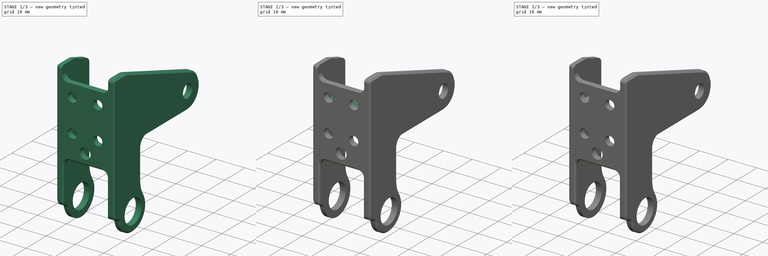
[diagram: build sequence overview — one tinted view per stage of 3, left to right]
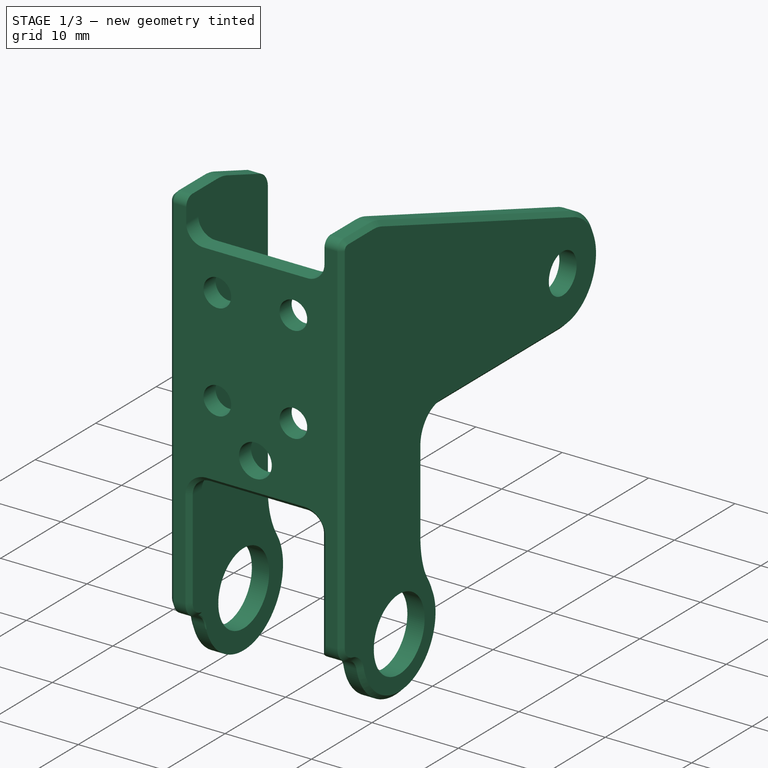
[diagram: stage 1 of 3 — iso view after this stage's code; geometry added in this stage tinted green]
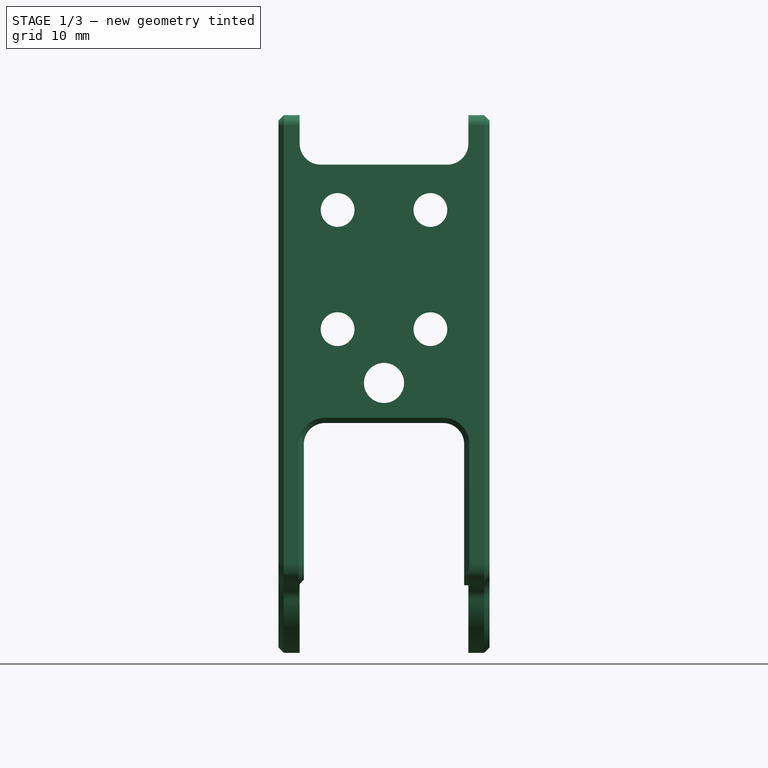
[diagram: stage 1 of 3 — front view after this stage's code; geometry added in this stage tinted green]
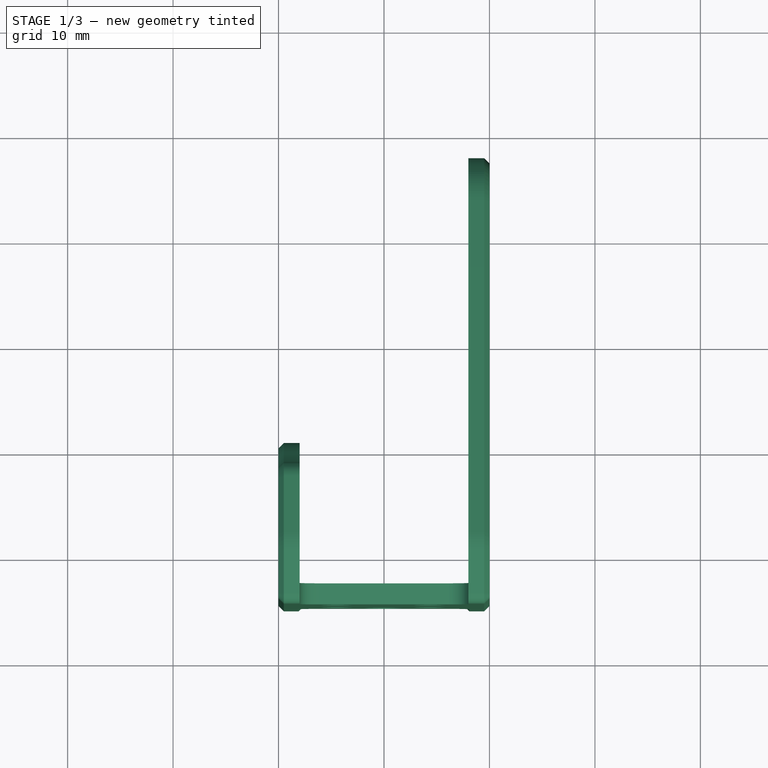
[diagram: stage 1 of 3 — top view after this stage's code; geometry added in this stage tinted green]
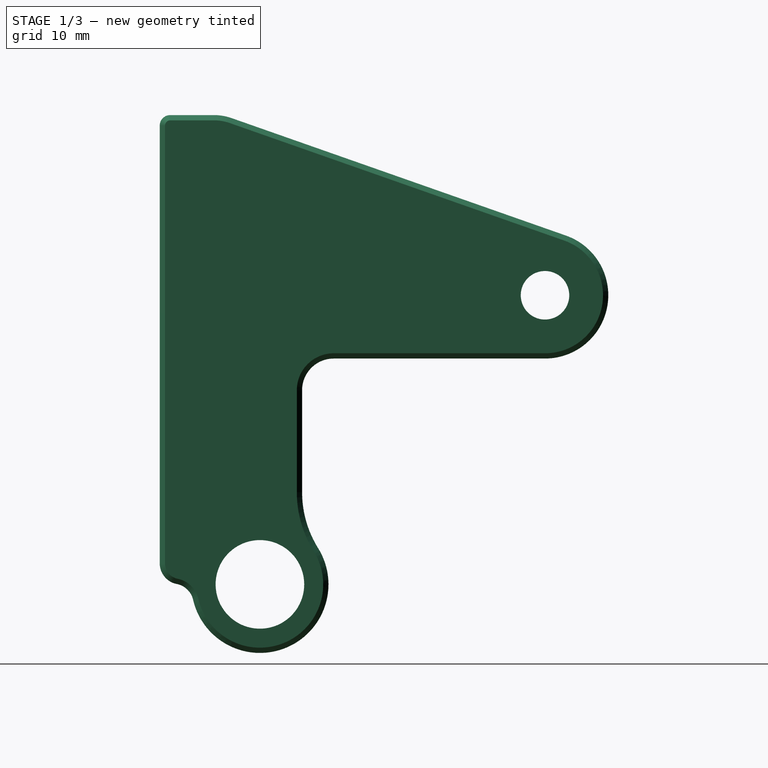
[diagram: stage 1 of 3 — right view after this stage's code; geometry added in this stage tinted green]
FCSTD DOCUMENT  (FreeCAD 0.18R16146 (Git))
Label: ResizedEndEffectorHold
License: All rights reserved
LicenseURL: http://en.wikipedia.org/wiki/All_rights_reserved
objects: Sketcher::SketchObject×4, PartDesign::Pocket×2, PartDesign::Pad×2, Part::Feature×1, PartDesign::FeatureBase×1, PartDesign::Body×1
note: 15 computed .brp shape members not serialized (recipe doc carries the construction recipe); baked Part::Feature solids carry a one-line shape summary decoded from their .brp

FEATURE [Part::Feature] Part__Feature086  label="EndEffectorHold"
  Placement = pos=(-58.6299,231.648,-119.954) rot=(-0.000298,-1,-0.000298;1.5708rad)
  shape: bbox 51.01 x 42.55 x 20 mm, 84 faces (baked)
FEATURE [PartDesign::FeatureBase] BaseFeature
  BaseFeature = -> Part__Feature086
FEATURE [Sketcher::SketchObject] Sketch
  ExternalGeometry = -> [BaseFeature]
  MapMode = 5
  Placement = pos=(10,0,0) rot=(0.57735,0.57735,0.57735;2.0944rad)
  Support = -> [BaseFeature]
  sketch-geometry (2):
    g0: Circle CenterX=-15.5 CenterY=-22 CenterZ=0 NormalX=0 NormalY=0 NormalZ=1 AngleXU=0 Radius=4.2
    g1: Circle CenterX=11.5329 CenterY=5.413 CenterZ=0 NormalX=0 NormalY=0 NormalZ=1 AngleXU=0 Radius=2.3
  constraints (4):
    c: Coincident(g0,g-4)
    c: Radius(g0) = 4.2
    c: Coincident(g1,g-6)
    c: Radius(g1) = 2.3
FEATURE [PartDesign::Pocket] Pocket
  BaseFeature = -> BaseFeature
  Length = 5
  Length2 = 100
  Profile = -> Sketch
  Type = 1
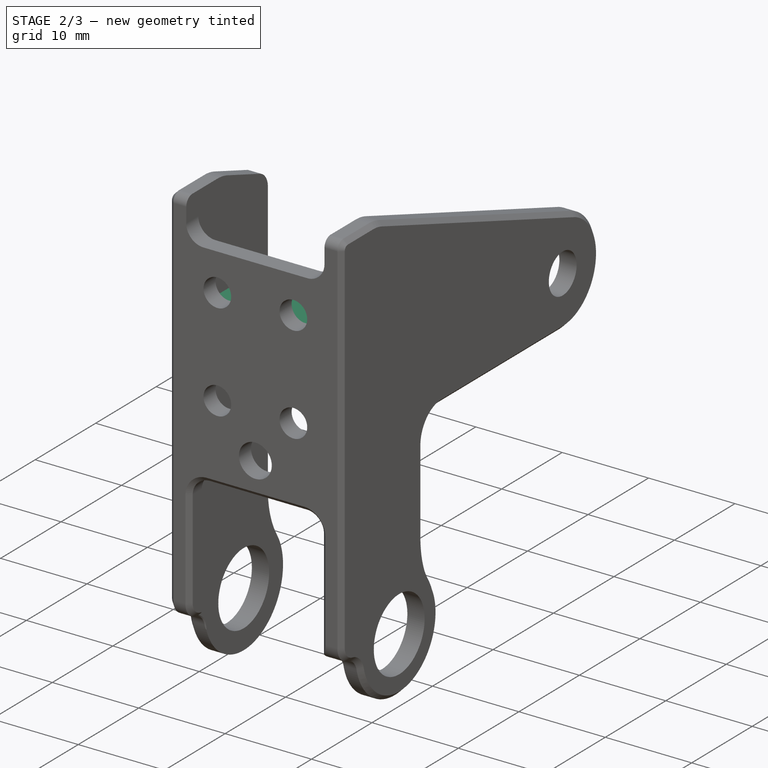
[diagram: stage 2 of 3 — iso view after this stage's code; geometry added in this stage tinted green]
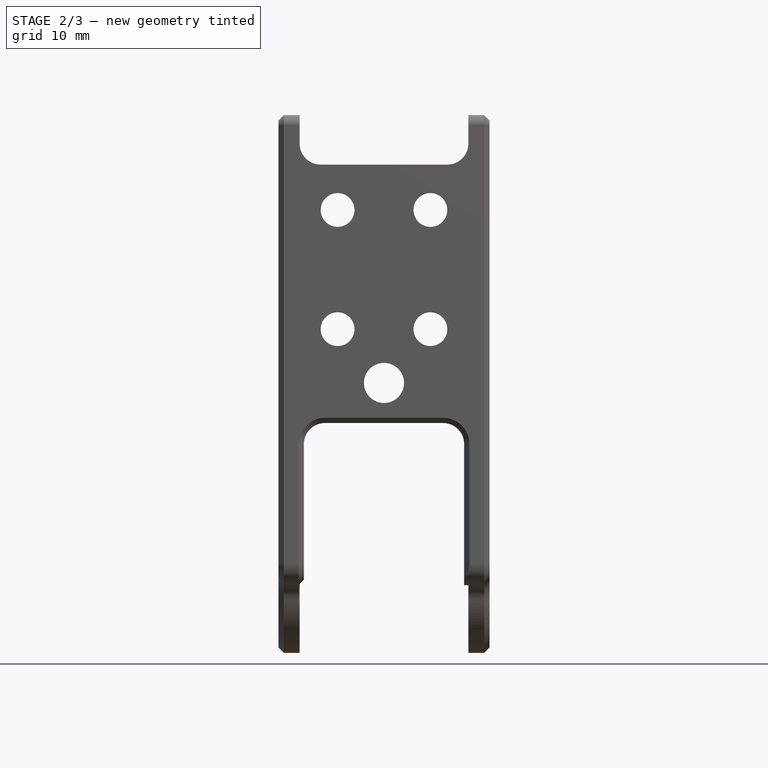
[diagram: stage 2 of 3 — front view after this stage's code; geometry added in this stage tinted green]
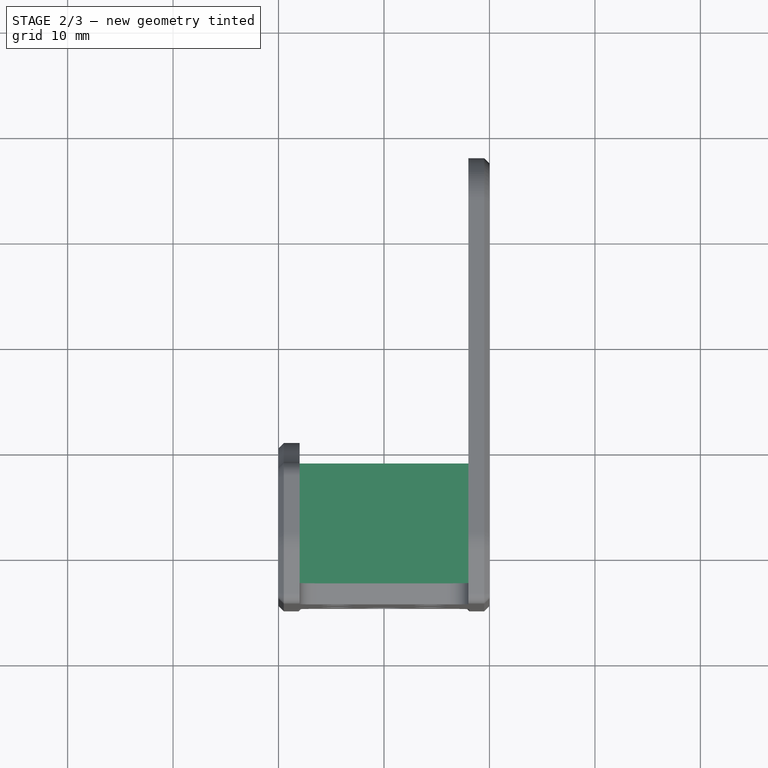
[diagram: stage 2 of 3 — top view after this stage's code; geometry added in this stage tinted green]
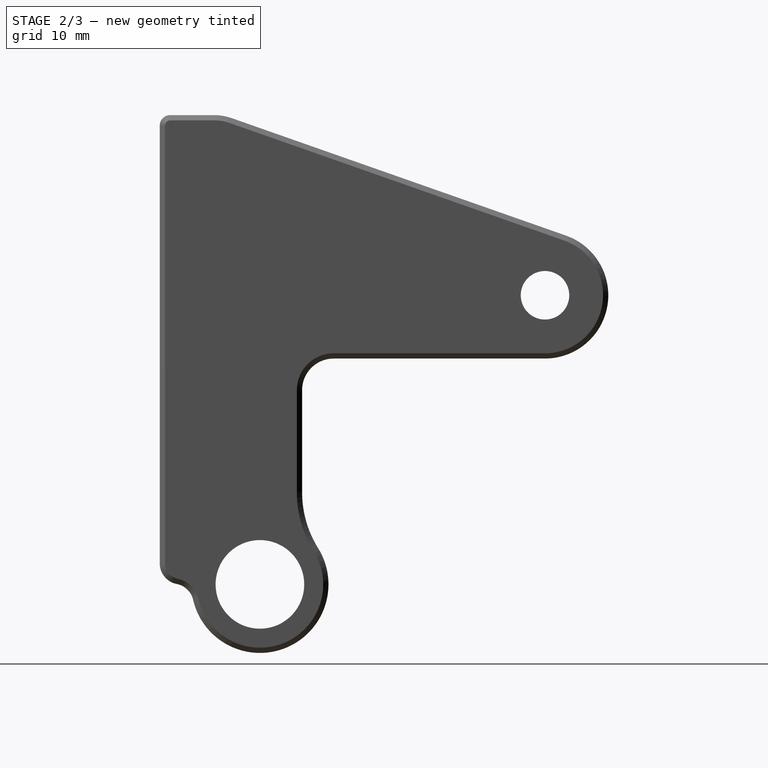
[diagram: stage 2 of 3 — right view after this stage's code; geometry added in this stage tinted green]
FEATURE [Sketcher::SketchObject] Sketch001
  ExternalGeometry = -> [Pocket]
  MapMode = 5
  Placement = pos=(0,-23,0) rot=(0,0.707107,0.707107;3.14159rad)
  Support = -> [Pocket]
  sketch-geometry (4):
    g0: LineSegment StartX=-8 StartY=10.35 StartZ=0 EndX=8 EndY=10.35 EndZ=0
    g1: LineSegment StartX=8 StartY=10.35 StartZ=0 EndX=8 EndY=5.35 EndZ=0
    g2: LineSegment StartX=8 StartY=5.35 StartZ=0 EndX=-8 EndY=5.35 EndZ=0
    g3: LineSegment StartX=-8 StartY=5.35 StartZ=0 EndX=-8 EndY=10.35 EndZ=0
  constraints (13):
    c: Coincident(g0,g1)
    c: Coincident(g1,g2)
    c: Coincident(g2,g3)
    c: Coincident(g3,g0)
    c: Horizontal(g0)
    c: Horizontal(g2)
    c: Vertical(g1)
    c: Vertical(g3)
    c: PointOnObject(g0,g-3)
    c: PointOnObject(g1,g-4)
    c: Distance(g0,g2) = 5
    c: Distance(g-6,g0) = 3.15
    c: Distance(g-7,g2) = 3.15
FEATURE [PartDesign::Pad] Pad
  BaseFeature = -> Pocket
  Length = 10
  Length2 = 100
  Profile = -> Sketch001
  Type = 3
  UpToFace = -> Pocket [Face20]
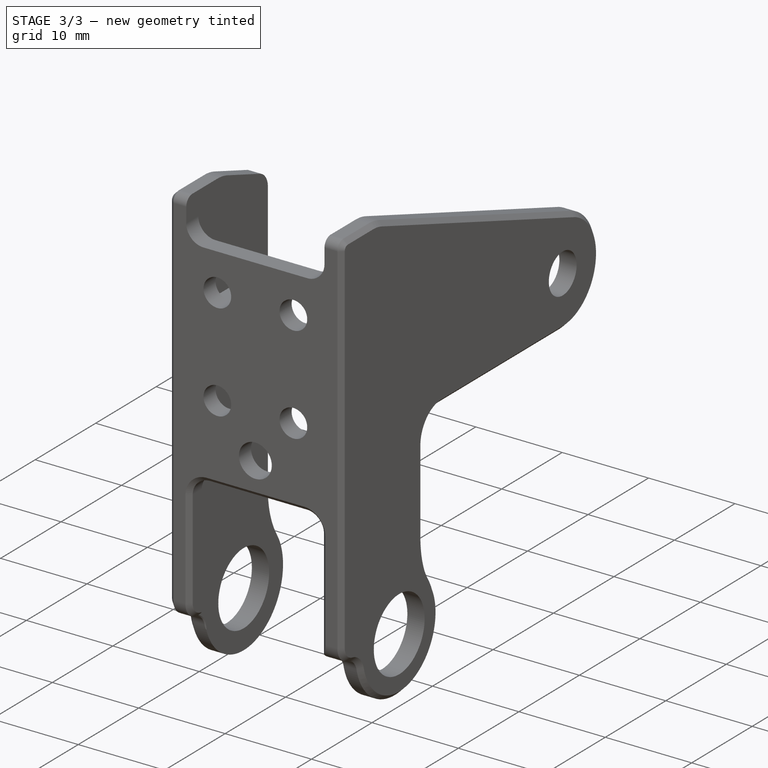
[diagram: stage 3 of 3 — iso view after this stage's code; geometry added in this stage tinted green]
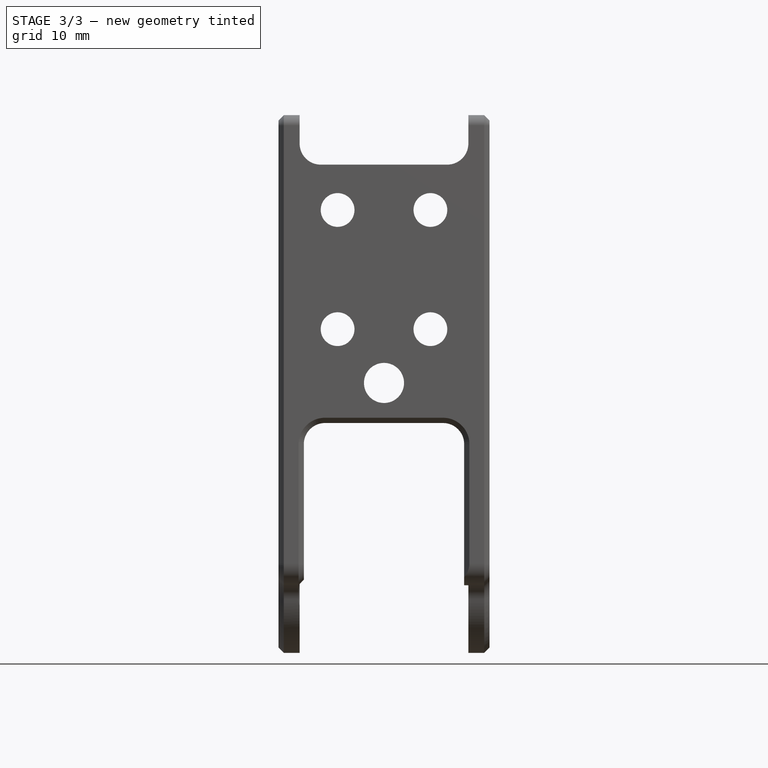
[diagram: stage 3 of 3 — front view after this stage's code; geometry added in this stage tinted green]
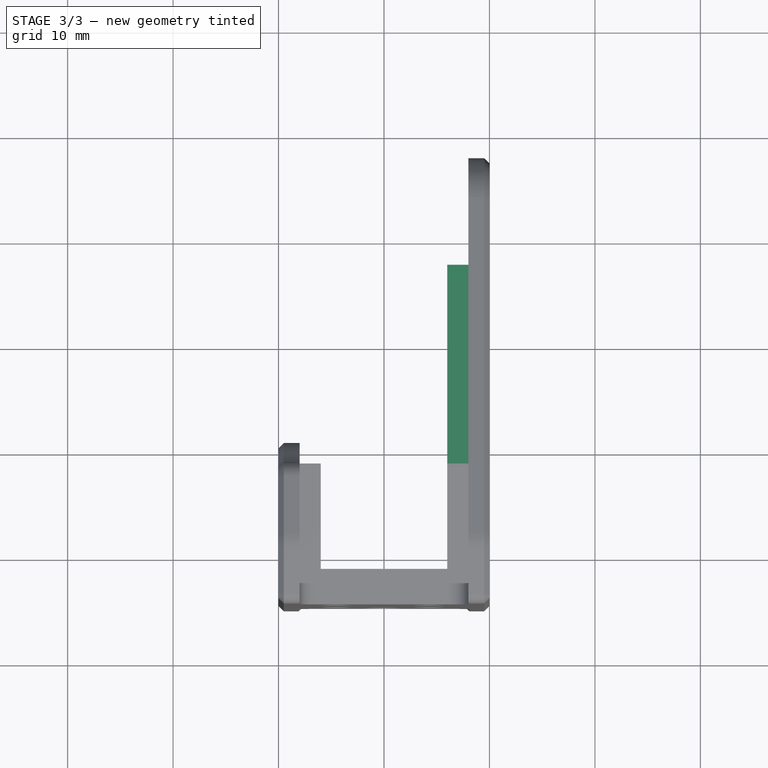
[diagram: stage 3 of 3 — top view after this stage's code; geometry added in this stage tinted green]
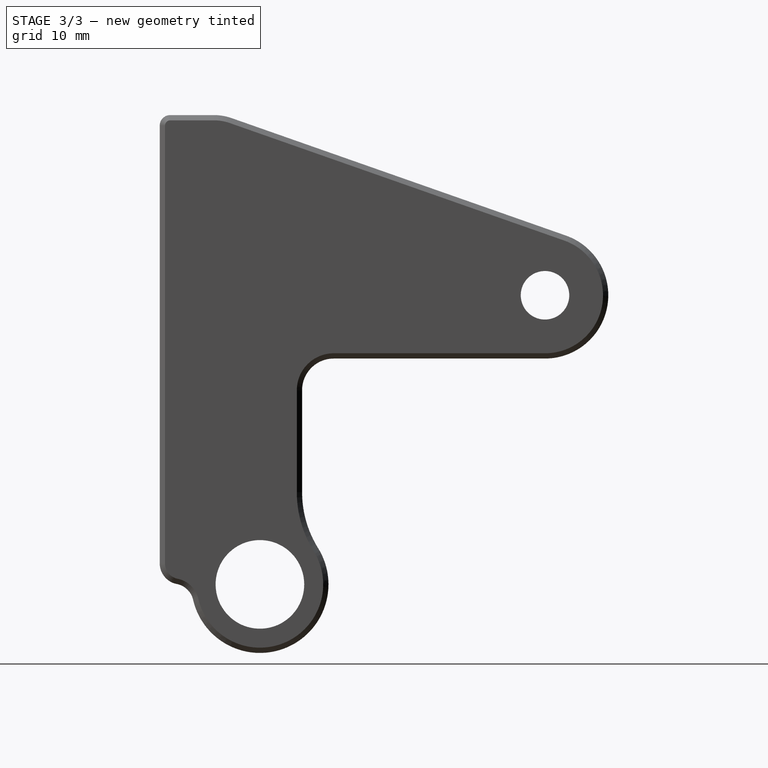
[diagram: stage 3 of 3 — right view after this stage's code; geometry added in this stage tinted green]
FEATURE [Sketcher::SketchObject] Sketch002
  ExternalGeometry = -> [Pad]
  MapMode = 5
  Placement = pos=(8,0,0) rot=(0.57735,-0.57735,-0.57735;2.0944rad)
  Support = -> [Pad]
  sketch-geometry (4):
    g0: LineSegment StartX=-7.3772 StartY=8.19333 StartZ=0 EndX=11.5 EndY=10.35 EndZ=0
    g1: LineSegment StartX=11.5 StartY=5.35 StartZ=0 EndX=-7.31763 EndY=2.72384 EndZ=0
    g2: ArcOfCircle CenterX=-11.5329 CenterY=5.413 CenterZ=0 NormalX=0 NormalY=0 NormalZ=1 AngleXU=0 Radius=5 StartAngle=5.71532 EndAngle=6.87283
    g3: LineSegment StartX=11.5 StartY=10.35 StartZ=0 EndX=11.5 EndY=5.35 EndZ=0
  constraints (10):
    c: Coincident(g0,g-3)
    c: Coincident(g1,g-3)
    c: Coincident(g2,g-6)
    c: Radius(g2) = 5
    c: Coincident(g2,g1)
    c: Coincident(g2,g0)
    c: Distance(g0) = 19
    c: Distance(g1) = 19
    c: Coincident(g3,g0)
    c: Coincident(g3,g1)
FEATURE [PartDesign::Pad] Pad001
  BaseFeature = -> Pad
  Length = 2
  Length2 = 100
  Profile = -> Sketch002
  Type = 0
FEATURE [Sketcher::SketchObject] Sketch003
  ExternalGeometry = -> [Pad001]
  MapMode = 5
  Placement = pos=(0,-11.5,0) rot=(0,0.707107,0.707107;3.14159rad)
  Support = -> [Pad001]
  sketch-geometry (4):
    g0: LineSegment StartX=-6 StartY=10.35 StartZ=0 EndX=6 EndY=10.35 EndZ=0
    g1: LineSegment StartX=6 StartY=10.35 StartZ=0 EndX=6 EndY=5.35 EndZ=0
    g2: LineSegment StartX=6 StartY=5.35 StartZ=0 EndX=-6 EndY=5.35 EndZ=0
    g3: LineSegment StartX=-6 StartY=5.35 StartZ=0 EndX=-6 EndY=10.35 EndZ=0
  constraints (10):
    c: Coincident(g0,g1)
    c: Coincident(g1,g2)
    c: Coincident(g2,g3)
    c: Coincident(g3,g0)
    c: Horizontal(g0)
    c: Horizontal(g2)
    c: Vertical(g1)
    c: Coincident(g0,g-3)
    c: Coincident(g2,g-3)
    c: Distance(g1,g-4) = 2
FEATURE [PartDesign::Pocket] Pocket001
  BaseFeature = -> Pad001
  Length = 10
  Length2 = 100
  Profile = -> Sketch003
  Type = 0
FEATURE [PartDesign::Body] Body  label="ResizedEndEffectorHold"
  BaseFeature = -> Part__Feature086
  Group = -> [BaseFeature,Sketch,Pocket,Sketch001,Pad,Sketch002,Pad001,Sketch003,Pocket001]
  Origin = -> Origin
  Tip = -> Pocket001
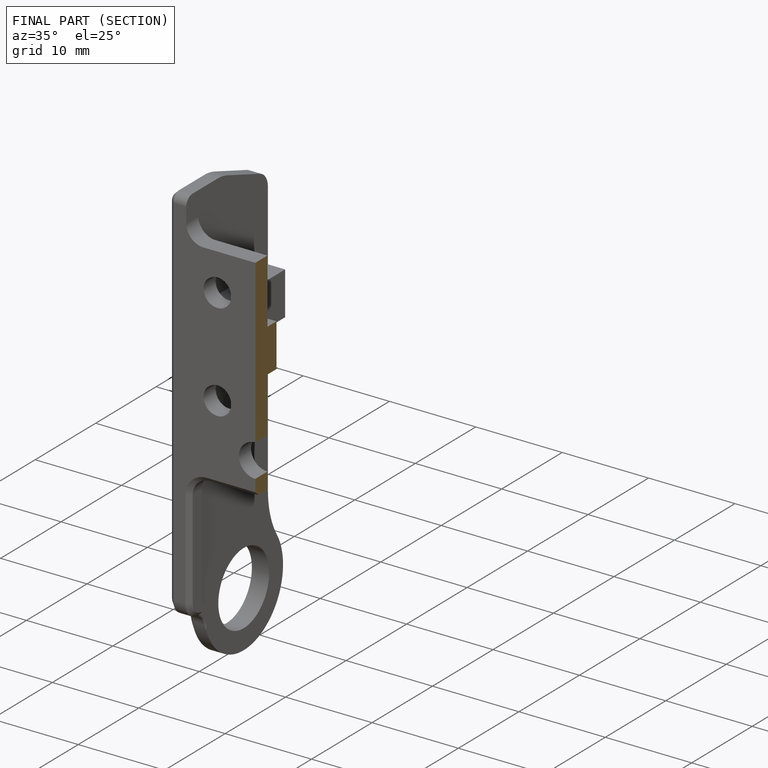
[diagram: finished part — half-section view (interior)]
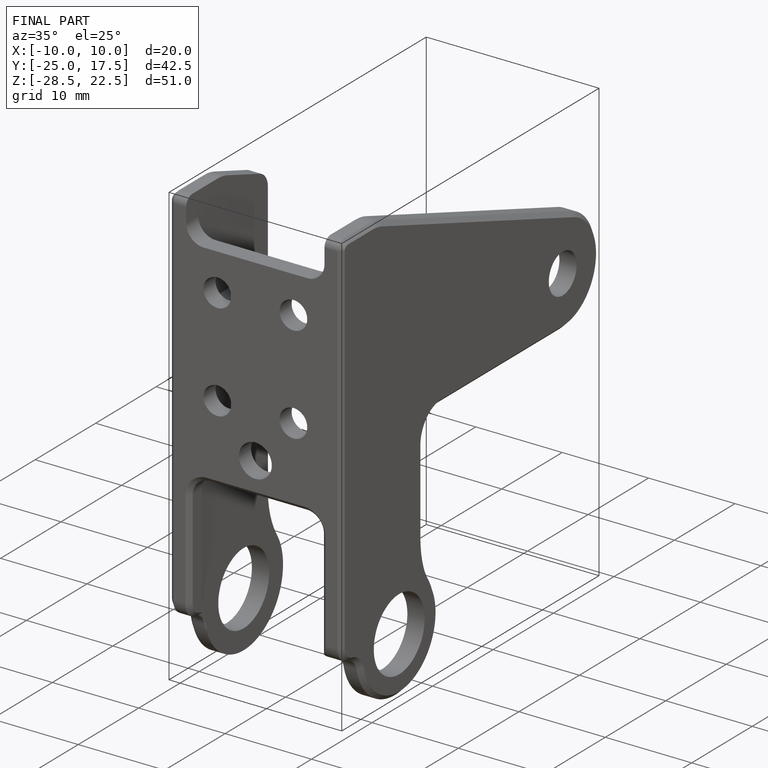
[diagram: finished part — iso view with bounding-box wireframe]
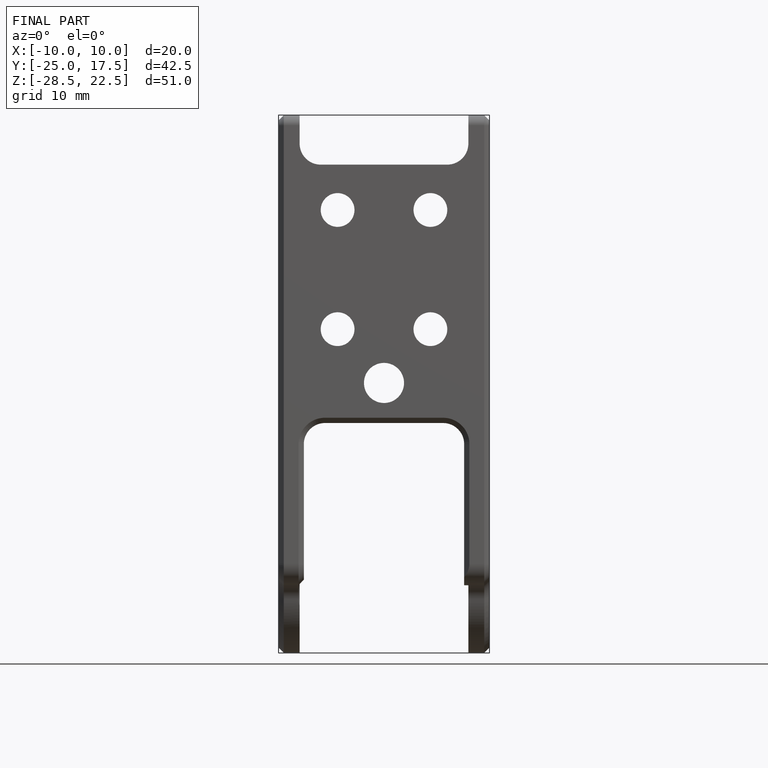
[diagram: finished part — front view with bounding-box wireframe]
